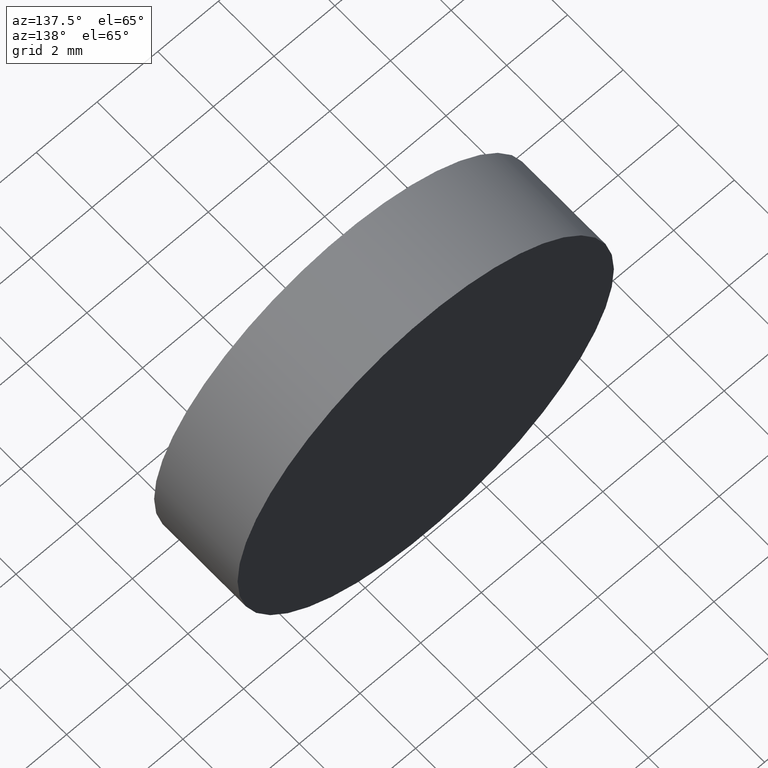
[diagram: clean part render]
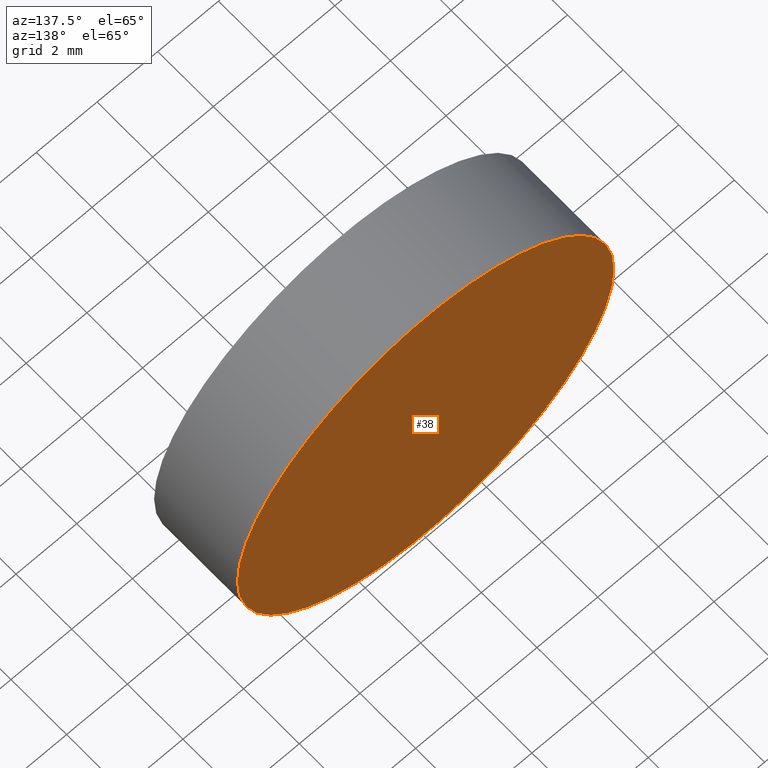
[diagram: same view with one face highlighted and labeled with its STEP entity id]
A machine part, auxiliary view. The second image highlights one B-rep face of the part: STEP entity #38.
In plain terms, the highlighted planar face has unit normal (0, 1, 0).
Its self-contained STEP definition (entity closure, byte-faithful):
#16=PLANE('',#45);
#20=FACE_OUTER_BOUND('',#24,.T.);
#24=EDGE_LOOP('',(#34));
#26=CIRCLE('',#43,6.2);
#28=VERTEX_POINT('',#62);
#30=EDGE_CURVE('',#28,#28,#26,.T.);
#34=ORIENTED_EDGE('',*,*,#30,.F.);
#38=ADVANCED_FACE('',(#20),#16,.T.);
#43=AXIS2_PLACEMENT_3D('',#63,#52,#53);
#45=AXIS2_PLACEMENT_3D('',#65,#56,#57);
#52=DIRECTION('center_axis',(0.,-1.,0.));
#53=DIRECTION('ref_axis',(1.,0.,0.));
#56=DIRECTION('center_axis',(0.,1.,0.));
#57=DIRECTION('ref_axis',(0.,0.,1.));
#62=CARTESIAN_POINT('',(-6.2,0.,7.59281015471359E-16));
#63=CARTESIAN_POINT('Origin',(0.,0.,0.));
#65=CARTESIAN_POINT('Origin',(3.61720467586365E-16,0.,-1.49223524815209E-16));